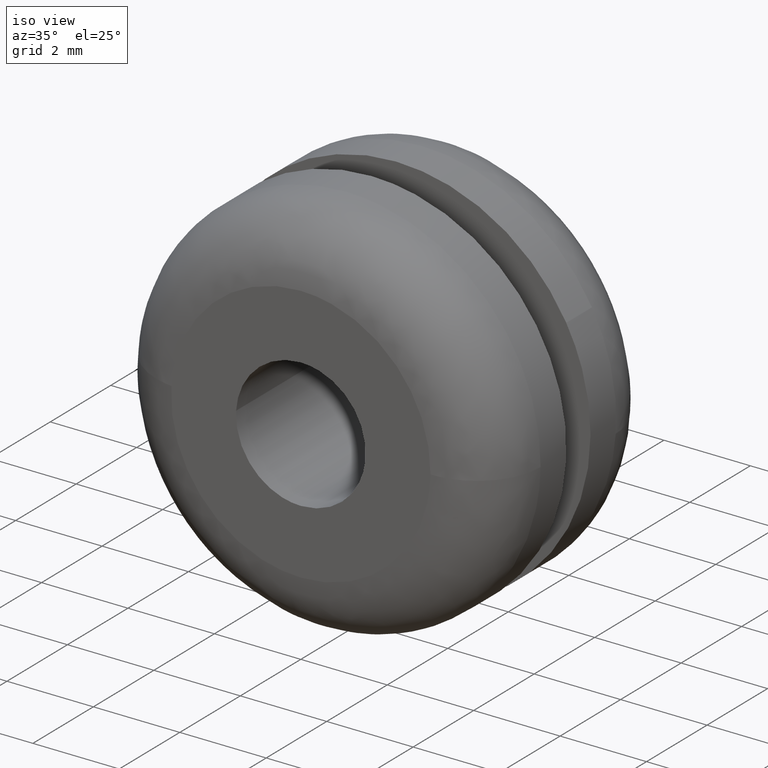
[diagram: clean part render]
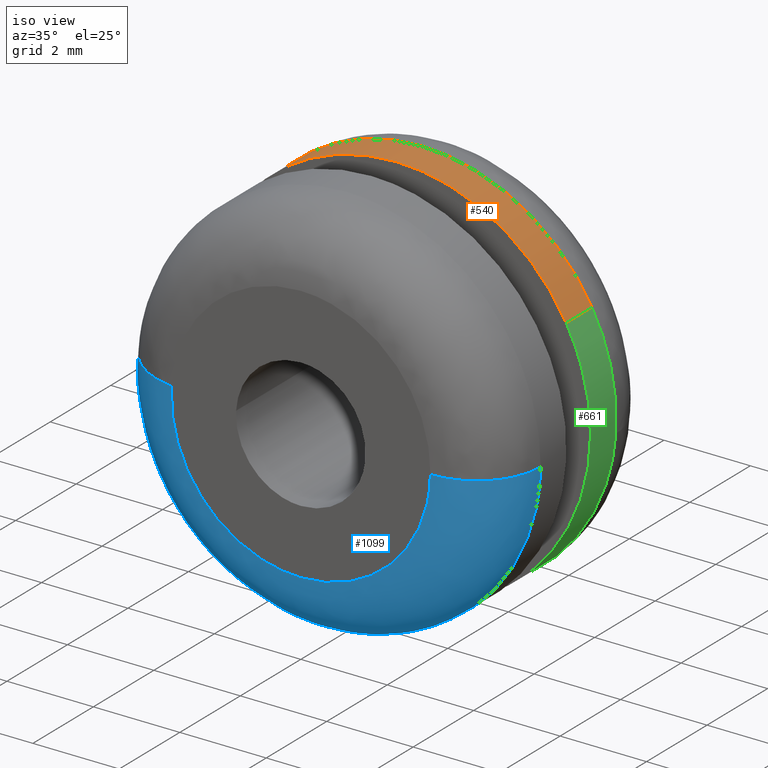
[diagram: same view with three faces highlighted in distinct colors, each labeled with its STEP entity id]
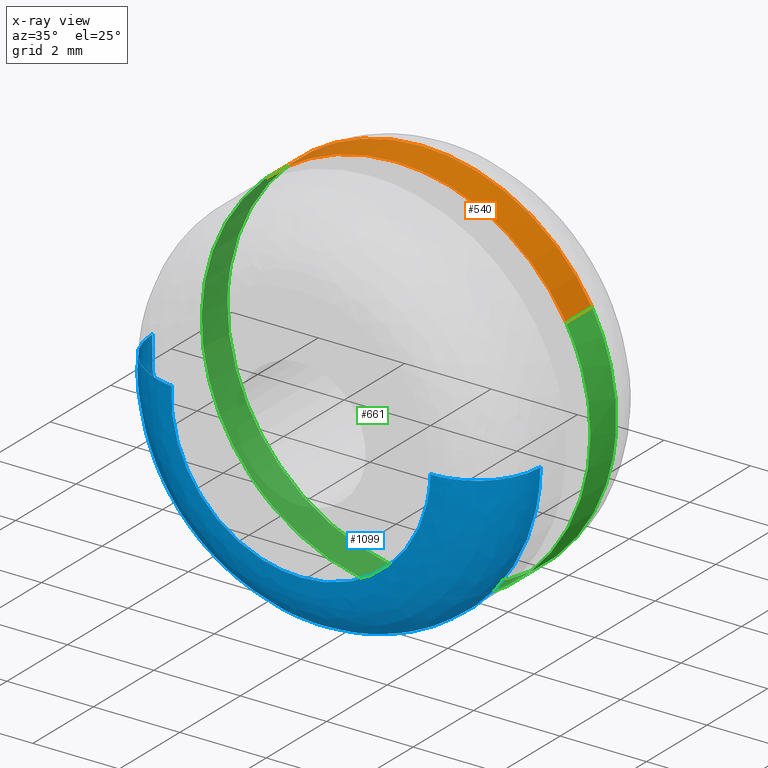
[diagram: x-ray of the same camera — body ghosted, the three highlighted faces saturated]
A machine part, iso view with three faces highlighted in distinct colors.
The next image is the same camera in x-ray (body ghosted, the three faces saturated) — at least one of them is partly hidden behind the body in this view.
Their STEP definitions:

[orange] entity #540 — the highlighted face is a freeform B-spline surface patch.
#446=CARTESIAN_POINT('',(3.937258923494086,4.021250000000000,2.178988795144706));
#447=CARTESIAN_POINT('',(3.678613609624216,4.021250000000001,2.646340243818148));
#448=CARTESIAN_POINT('',(3.317748015645557,4.021250000000000,3.040155934270470));
#449=CARTESIAN_POINT('',(0.277592081375087,4.021250000000000,6.357903949916027));
#450=CARTESIAN_POINT('',(-3.040155934270470,4.021250000000000,3.317748015645556));
#451=CARTESIAN_POINT('',(3.937258923494086,3.128218750000001,2.178988795144706));
#452=CARTESIAN_POINT('',(3.678613609624216,3.128218750000000,2.646340243818148));
#453=CARTESIAN_POINT('',(3.317748015645557,3.128218749999999,3.040155934270470));
#454=CARTESIAN_POINT('',(0.277592081375087,3.128218749999999,6.357903949916027));
#455=CARTESIAN_POINT('',(-3.040155934270470,3.128218749999999,3.317748015645556));
#463=(BOUNDED_SURFACE()B_SPLINE_SURFACE(2,1,((#446,#451),(#447,#452),(#448,#453),(#449,#454),(#450,#455)),.UNSPECIFIED.,.F.,.F.,.U.)B_SPLINE_SURFACE_WITH_KNOTS((3,2,3),(2,2),(0.0,1.192935059634515,8.648779182350223),(0.0,1.0),.UNSPECIFIED.)GEOMETRIC_REPRESENTATION_ITEM()RATIONAL_B_SPLINE_SURFACE(((0.921270302782944,0.921270302782944),(0.953137084989848,0.953137084989848),(1.0,1.0),(0.707106781186548,0.707106781186548),(1.0,1.0)))REPRESENTATION_ITEM('')SURFACE());
#464=CARTESIAN_POINT('',(3.937259326449927,3.999998615104019,2.178988067033666));
#465=VERTEX_POINT('',#464);
#466=CARTESIAN_POINT('',(0.0,4.0,4.500000000000000));
#467=VERTEX_POINT('',#466);
#468=CARTESIAN_POINT('',(3.937259326449926,3.999998615104019,2.178988067033667));
#469=CARTESIAN_POINT('',(2.652747771968026,3.999999428310455,4.500000000000056));
#470=CARTESIAN_POINT('',(0.0,4.0,4.500000000000000));
#478=(BOUNDED_CURVE()B_SPLINE_CURVE(2,(#468,#469,#470),.UNSPECIFIED.,.F.,.U.)B_SPLINE_CURVE_WITH_KNOTS((3,3),(0.332484232055869,0.500000000000000),.UNSPECIFIED.)CURVE()GEOMETRIC_REPRESENTATION_ITEM()RATIONAL_B_SPLINE_CURVE((0.870495182812016,0.803743070099344,1.0))REPRESENTATION_ITEM(''));
#479=EDGE_CURVE('',#465,#467,#478,.T.);
#480=ORIENTED_EDGE('',*,*,#479,.T.);
#481=CARTESIAN_POINT('',(-3.040155751178251,3.999999005672904,3.317748183417780));
#482=VERTEX_POINT('',#481);
#483=CARTESIAN_POINT('',(0.0,4.0,4.500000000000000));
#484=CARTESIAN_POINT('',(-1.749954007448562,3.999999586460660,4.499999999999990));
#485=CARTESIAN_POINT('',(-3.040155751178251,3.999999005672904,3.317748183417780));
#493=(BOUNDED_CURVE()B_SPLINE_CURVE(2,(#483,#484,#485),.UNSPECIFIED.,.F.,.U.)B_SPLINE_CURVE_WITH_KNOTS((3,3),(0.500000000000000,0.618415192422472),.UNSPECIFIED.)CURVE()GEOMETRIC_REPRESENTATION_ITEM()RATIONAL_B_SPLINE_CURVE((1.0,0.861267972539871,0.853959782894549))REPRESENTATION_ITEM(''));
#494=EDGE_CURVE('',#467,#482,#493,.T.);
#495=ORIENTED_EDGE('',*,*,#494,.T.);
#496=CARTESIAN_POINT('',(-3.040155756033133,3.150000000000000,3.317748178969969));
#497=VERTEX_POINT('',#496);
#498=CARTESIAN_POINT('',(-3.040155751178251,3.999999005672904,3.317748183417780));
#499=CARTESIAN_POINT('',(-3.040155756033133,3.150000000000000,3.317748178969969));
#500=QUASI_UNIFORM_CURVE('',1,(#498,#499),.UNSPECIFIED.,.F.,.U.);
#501=EDGE_CURVE('',#482,#497,#500,.T.);
#502=ORIENTED_EDGE('',*,*,#501,.T.);
#503=CARTESIAN_POINT('',(0.0,3.150000000000000,4.500000000000000));
#504=VERTEX_POINT('',#503);
#505=CARTESIAN_POINT('',(0.0,3.150000000000000,4.500000000000000));
#506=CARTESIAN_POINT('',(-1.749954015028582,3.150000000000001,4.500000000000000));
#507=CARTESIAN_POINT('',(-3.040155756033133,3.150000000000000,3.317748178969969));
#515=(BOUNDED_CURVE()B_SPLINE_CURVE(2,(#505,#506,#507),.UNSPECIFIED.,.F.,.U.)B_SPLINE_CURVE_WITH_KNOTS((3,3),(0.500000000000000,0.618415192864190),.UNSPECIFIED.)CURVE()GEOMETRIC_REPRESENTATION_ITEM()RATIONAL_B_SPLINE_CURVE((1.0,0.861267972022367,0.853959782840026))REPRESENTATION_ITEM(''));
#516=EDGE_CURVE('',#504,#497,#515,.T.);
#517=ORIENTED_EDGE('',*,*,#516,.F.);
#518=CARTESIAN_POINT('',(3.937259294698642,3.150000000000000,2.178988124407418));
#519=VERTEX_POINT('',#518);
#520=CARTESIAN_POINT('',(3.937259294698642,3.150000000000000,2.178988124407417));
#521=CARTESIAN_POINT('',(2.652747683607111,3.150000000000000,4.500000000000000));
#522=CARTESIAN_POINT('',(0.0,3.150000000000000,4.500000000000000));
#530=(BOUNDED_CURVE()B_SPLINE_CURVE(2,(#520,#521,#522),.UNSPECIFIED.,.F.,.U.)B_SPLINE_CURVE_WITH_KNOTS((3,3),(0.332484236540648,0.500000000000000),.UNSPECIFIED.)CURVE()GEOMETRIC_REPRESENTATION_ITEM()RATIONAL_B_SPLINE_CURVE((0.870495179237803,0.803743075353590,1.0))REPRESENTATION_ITEM(''));
#531=EDGE_CURVE('',#519,#504,#530,.T.);
#532=ORIENTED_EDGE('',*,*,#531,.F.);
#533=CARTESIAN_POINT('',(3.937259326449927,3.999998615104019,2.178988067033666));
#534=CARTESIAN_POINT('',(3.937259294698642,3.150000000000000,2.178988124407418));
#535=QUASI_UNIFORM_CURVE('',1,(#533,#534),.UNSPECIFIED.,.F.,.U.);
#536=EDGE_CURVE('',#465,#519,#535,.T.);
#537=ORIENTED_EDGE('',*,*,#536,.F.);
#538=EDGE_LOOP('',(#480,#495,#502,#517,#532,#537));
#539=FACE_OUTER_BOUND('',#538,.T.);
#540=ADVANCED_FACE('',(#539),#463,.T.);

[blue] entity #1099 — the highlighted face is a freeform B-spline surface patch.
#70=CARTESIAN_POINT('',(2.442279190676583,1.500000644835007,-3.779586267673306));
#71=VERTEX_POINT('',#70);
#72=CARTESIAN_POINT('',(4.499644736739940,1.500001817245184,-0.056544169457881));
#73=VERTEX_POINT('',#72);
#74=CARTESIAN_POINT('',(2.442279190676583,1.500000644835007,-3.779586267673306));
#75=CARTESIAN_POINT('',(4.469319372852793,1.500001323777086,-2.469761399752330));
#76=CARTESIAN_POINT('',(4.499644736739940,1.500001817245185,-0.056544169457881));
#84=(BOUNDED_CURVE()B_SPLINE_CURVE(2,(#74,#75,#76),.UNSPECIFIED.,.F.,.U.)B_SPLINE_CURVE_WITH_KNOTS((3,3),(0.092934687537598,0.247784413567222),.UNSPECIFIED.)CURVE()GEOMETRIC_REPRESENTATION_ITEM()RATIONAL_B_SPLINE_CURVE((0.863190132942542,0.816652401106871,0.994854566418424))REPRESENTATION_ITEM(''));
#85=EDGE_CURVE('',#71,#73,#84,.T.);
#128=CARTESIAN_POINT('',(-3.472310983391997,1.500000969015339,-2.862351556781801));
#129=VERTEX_POINT('',#128);
#135=CARTESIAN_POINT('',(-4.489045532774552,1.500001788692589,0.313799625011947));
#136=VERTEX_POINT('',#135);
#137=CARTESIAN_POINT('',(-4.489045532774553,1.500001788692590,0.313799625011947));
#138=CARTESIAN_POINT('',(-4.499999999997907,1.500001759578008,0.157091017884401));
#139=CARTESIAN_POINT('',(-4.499999999997943,1.500001728357170,-1.432532E-013));
#140=CARTESIAN_POINT('',(-4.499999999998325,1.500001407254165,-1.615664453957860));
#141=CARTESIAN_POINT('',(-3.472310983391997,1.500000969015339,-2.862351556781802));
#149=(BOUNDED_CURVE()B_SPLINE_CURVE(2,(#137,#138,#139,#140,#141),.UNSPECIFIED.,.F.,.U.)B_SPLINE_CURVE_WITH_KNOTS((3,2,3),(0.737833686806281,0.750000000000000,0.860504588013028),.UNSPECIFIED.)CURVE()GEOMETRIC_REPRESENTATION_ITEM()RATIONAL_B_SPLINE_CURVE((0.972879876960564,0.985746277470396,1.0,0.870535822092839,0.855522729322288))REPRESENTATION_ITEM(''));
#150=EDGE_CURVE('',#136,#129,#149,.T.);
#199=CARTESIAN_POINT('',(0.0,1.500000000000000,-4.500000000000000));
#200=VERTEX_POINT('',#199);
#201=CARTESIAN_POINT('',(0.0,1.500000000000000,-4.500000000000000));
#202=CARTESIAN_POINT('',(1.327391529751170,1.500000271410983,-4.499999999999995));
#203=CARTESIAN_POINT('',(2.442279190676583,1.500000644835007,-3.779586267673307));
#211=(BOUNDED_CURVE()B_SPLINE_CURVE(2,(#201,#202,#203),.UNSPECIFIED.,.F.,.U.)B_SPLINE_CURVE_WITH_KNOTS((3,3),(0.0,0.092934687537598),.UNSPECIFIED.)CURVE()GEOMETRIC_REPRESENTATION_ITEM()RATIONAL_B_SPLINE_CURVE((1.0,0.891120240910762,0.863190132942542))REPRESENTATION_ITEM(''));
#212=EDGE_CURVE('',#200,#71,#211,.T.);
#214=CARTESIAN_POINT('',(-3.472310983391997,1.500000969015339,-2.862351556781802));
#215=CARTESIAN_POINT('',(-2.122338472770120,1.500000393345193,-4.500000000000034));
#216=CARTESIAN_POINT('',(0.0,1.500000000000000,-4.500000000000000));
#224=(BOUNDED_CURVE()B_SPLINE_CURVE(2,(#214,#215,#216),.UNSPECIFIED.,.F.,.U.)B_SPLINE_CURVE_WITH_KNOTS((3,3),(0.860504588013029,1.0),.UNSPECIFIED.)CURVE()GEOMETRIC_REPRESENTATION_ITEM()RATIONAL_B_SPLINE_CURVE((0.855522729322287,0.836570959093710,1.0))REPRESENTATION_ITEM(''));
#225=EDGE_CURVE('',#129,#200,#224,.T.);
#1004=CARTESIAN_POINT('',(-4.485423301064805,1.604307614881043,0.313546176984434));
#1005=CARTESIAN_POINT('',(-4.494396849282249,1.604307614881043,0.185175413051453));
#1006=CARTESIAN_POINT('',(-4.496013897839067,1.604307614881042,0.056501551081305));
#1007=CARTESIAN_POINT('',(-4.552515448920373,1.604307614881042,-4.439512346757762));
#1008=CARTESIAN_POINT('',(-0.056501551081306,1.604307614881042,-4.496013897839067));
#1009=CARTESIAN_POINT('',(4.439512346757762,1.604307614881042,-4.552515448920373));
#1010=CARTESIAN_POINT('',(4.496013897839067,1.604307614881042,-0.056501551081306));
#1011=CARTESIAN_POINT('',(-4.605070410531482,-0.116306078043954,0.321909912409719));
#1012=CARTESIAN_POINT('',(-4.614283325032510,-0.116306078043954,0.190114902912007));
#1013=CARTESIAN_POINT('',(-4.615943507798231,-0.116306078043954,0.058008710342206));
#1014=CARTESIAN_POINT('',(-4.673952218140440,-0.116306078043954,-4.557934797456025));
#1015=CARTESIAN_POINT('',(-0.058008710342207,-0.116306078043954,-4.615943507798231));
#1016=CARTESIAN_POINT('',(4.557934797456025,-0.116306078043954,-4.673952218140440));
#1017=CARTESIAN_POINT('',(4.615943507798231,-0.116306078043954,-0.058008710342208));
#1018=CARTESIAN_POINT('',(-2.888645104223201,0.003630964253733,0.201926009721083));
#1019=CARTESIAN_POINT('',(-2.894424134291484,0.003630964253733,0.119254307660685));
#1020=CARTESIAN_POINT('',(-2.895465525278112,0.003630964253733,0.036387408268308));
#1021=CARTESIAN_POINT('',(-2.931852933546420,0.003630964253733,-2.859078117009804));
#1022=CARTESIAN_POINT('',(-0.036387408268309,0.003630964253733,-2.895465525278114));
#1023=CARTESIAN_POINT('',(2.859078117009803,0.003630964253733,-2.931852933546422));
#1024=CARTESIAN_POINT('',(2.895465525278112,0.003630964253733,-0.036387408268309));
#1032=(BOUNDED_SURFACE()B_SPLINE_SURFACE(2,2,((#1004,#1011,#1018),(#1005,#1012,#1019),(#1006,#1013,#1020),(#1007,#1014,#1021),(#1008,#1015,#1022),(#1009,#1016,#1023),(#1010,#1017,#1024)),.UNSPECIFIED.,.F.,.F.,.U.)B_SPLINE_SURFACE_WITH_KNOTS((3,2,2,3),(3,3),(0.0,0.297992833391932,7.747820772899786,15.197648712407640),(0.0,2.733563446293642),.UNSPECIFIED.)GEOMETRIC_REPRESENTATION_ITEM()RATIONAL_B_SPLINE_SURFACE(((0.889999828655264,0.584039477663278,0.889999348488649),(0.899813405508992,0.590479384857776,0.899812920047823),(0.910480335987150,0.597479283401742,0.910479844771032),(0.643806819713520,0.422481652911851,0.643806472371272),(0.910480335987150,0.597479283401742,0.910479844771032),(0.643806819713520,0.422481652911851,0.643806472371272),(0.910480335987150,0.597479283401742,0.910479844771032)))REPRESENTATION_ITEM('')SURFACE());
#1033=ORIENTED_EDGE('',*,*,#150,.T.);
#1034=ORIENTED_EDGE('',*,*,#225,.T.);
#1035=ORIENTED_EDGE('',*,*,#212,.T.);
#1036=ORIENTED_EDGE('',*,*,#85,.T.);
#1037=CARTESIAN_POINT('',(2.999763132632581,-2.416769E-017,-0.037698119653299));
#1038=VERTEX_POINT('',#1037);
#1039=CARTESIAN_POINT('',(4.499644736739940,1.500001817245184,-0.056544169457881));
#1040=CARTESIAN_POINT('',(4.499646534921304,4.234577E-011,-0.056545697303434));
#1041=CARTESIAN_POINT('',(2.999763132632581,-2.416769E-017,-0.037698119653299));
#1049=(BOUNDED_CURVE()B_SPLINE_CURVE(2,(#1039,#1040,#1041),.UNSPECIFIED.,.F.,.U.)B_SPLINE_CURVE_WITH_KNOTS((3,3),(-1.725135885666325,-0.274865356747136),.UNSPECIFIED.)CURVE()GEOMETRIC_REPRESENTATION_ITEM()RATIONAL_B_SPLINE_CURVE((0.883342592930895,0.624617002494017,0.883342149642730))REPRESENTATION_ITEM(''));
#1050=EDGE_CURVE('',#73,#1038,#1049,.T.);
#1051=ORIENTED_EDGE('',*,*,#1050,.T.);
#1052=CARTESIAN_POINT('',(0.0,-5.510729E-016,-3.0));
#1053=VERTEX_POINT('',#1052);
#1054=CARTESIAN_POINT('',(0.0,-5.510729E-016,-3.0));
#1055=CARTESIAN_POINT('',(2.962535789716068,-5.510729E-016,-3.000000000000000));
#1056=CARTESIAN_POINT('',(2.999763132632581,-2.416769E-017,-0.037698119653299));
#1064=(BOUNDED_CURVE()B_SPLINE_CURVE(2,(#1054,#1055,#1056),.UNSPECIFIED.,.F.,.U.)B_SPLINE_CURVE_WITH_KNOTS((3,3),(0.0,0.247784295921379),.UNSPECIFIED.)CURVE()GEOMETRIC_REPRESENTATION_ITEM()RATIONAL_B_SPLINE_CURVE((1.0,0.709702639984649,0.994854295643210))REPRESENTATION_ITEM(''));
#1065=EDGE_CURVE('',#1053,#1038,#1064,.T.);
#1066=ORIENTED_EDGE('',*,*,#1065,.F.);
#1067=CARTESIAN_POINT('',(-2.992697021620958,-1.838323E-017,0.209199754758038));
#1068=VERTEX_POINT('',#1067);
#1069=CARTESIAN_POINT('',(-2.992697021620958,-1.838323E-017,0.209199754758038));
#1070=CARTESIAN_POINT('',(-3.0,-5.510729E-016,0.104727347648850));
#1071=CARTESIAN_POINT('',(-3.0,-5.510729E-016,-3.061516E-016));
#1072=CARTESIAN_POINT('',(-3.0,-5.510729E-016,-3.0));
#1073=CARTESIAN_POINT('',(0.0,-5.510729E-016,-3.0));
#1081=(BOUNDED_CURVE()B_SPLINE_CURVE(2,(#1069,#1070,#1071,#1072,#1073),.UNSPECIFIED.,.F.,.U.)B_SPLINE_CURVE_WITH_KNOTS((3,2,3),(0.737833686532304,0.750000000000000,1.0),.UNSPECIFIED.)CURVE()GEOMETRIC_REPRESENTATION_ITEM()RATIONAL_B_SPLINE_CURVE((0.972879876381080,0.985746277149413,1.0,0.707106781186548,1.0))REPRESENTATION_ITEM(''));
#1082=EDGE_CURVE('',#1068,#1053,#1081,.T.);
#1083=ORIENTED_EDGE('',*,*,#1082,.F.);
#1084=CARTESIAN_POINT('',(-4.489045532774553,1.500001788692589,0.313799625011947));
#1085=CARTESIAN_POINT('',(-4.489047316621336,2.032624E-010,0.313799756820915));
#1086=CARTESIAN_POINT('',(-2.992697021620958,-1.838323E-017,0.209199754758038));
#1094=(BOUNDED_CURVE()B_SPLINE_CURVE(2,(#1084,#1085,#1086),.UNSPECIFIED.,.F.,.U.)B_SPLINE_CURVE_WITH_KNOTS((3,3),(-1.725135866145949,-0.274865356857148),.UNSPECIFIED.)CURVE()GEOMETRIC_REPRESENTATION_ITEM()RATIONAL_B_SPLINE_CURVE((0.863472501871228,0.610566746636410,0.863472075324237))REPRESENTATION_ITEM(''));
#1095=EDGE_CURVE('',#136,#1068,#1094,.T.);
#1096=ORIENTED_EDGE('',*,*,#1095,.F.);
#1097=EDGE_LOOP('',(#1033,#1034,#1035,#1036,#1051,#1066,#1083,#1096));
#1098=FACE_OUTER_BOUND('',#1097,.T.);
#1099=ADVANCED_FACE('',(#1098),#1032,.T.);

[green] entity #661 — the highlighted face is a freeform B-spline surface patch.
#464=CARTESIAN_POINT('',(3.937259326449927,3.999998615104019,2.178988067033666));
#465=VERTEX_POINT('',#464);
#481=CARTESIAN_POINT('',(-3.040155751178251,3.999999005672904,3.317748183417780));
#482=VERTEX_POINT('',#481);
#496=CARTESIAN_POINT('',(-3.040155756033133,3.150000000000000,3.317748178969969));
#497=VERTEX_POINT('',#496);
#498=CARTESIAN_POINT('',(-3.040155751178251,3.999999005672904,3.317748183417780));
#499=CARTESIAN_POINT('',(-3.040155756033133,3.150000000000000,3.317748178969969));
#500=QUASI_UNIFORM_CURVE('',1,(#498,#499),.UNSPECIFIED.,.F.,.U.);
#501=EDGE_CURVE('',#482,#497,#500,.T.);
#518=CARTESIAN_POINT('',(3.937259294698642,3.150000000000000,2.178988124407418));
#519=VERTEX_POINT('',#518);
#533=CARTESIAN_POINT('',(3.937259326449927,3.999998615104019,2.178988067033666));
#534=CARTESIAN_POINT('',(3.937259294698642,3.150000000000000,2.178988124407418));
#535=QUASI_UNIFORM_CURVE('',1,(#533,#534),.UNSPECIFIED.,.F.,.U.);
#536=EDGE_CURVE('',#465,#519,#535,.T.);
#541=CARTESIAN_POINT('',(-3.040155934270470,4.021250000000000,3.317748015645556));
#542=CARTESIAN_POINT('',(-6.357903949916027,4.021250000000000,0.277592081375086));
#543=CARTESIAN_POINT('',(-3.317748015645557,4.021250000000000,-3.040155934270471));
#544=CARTESIAN_POINT('',(-0.277592081375087,4.021250000000000,-6.357903949916027));
#545=CARTESIAN_POINT('',(3.040155934270470,4.021250000000000,-3.317748015645557));
#546=CARTESIAN_POINT('',(5.653844244093578,4.021250000000000,-0.922743938189733));
#547=CARTESIAN_POINT('',(3.937258923494086,4.021250000000000,2.178988795144706));
#548=CARTESIAN_POINT('',(-3.040155934270470,3.128218749999999,3.317748015645556));
#549=CARTESIAN_POINT('',(-6.357903949916027,3.128218749999999,0.277592081375086));
#550=CARTESIAN_POINT('',(-3.317748015645557,3.128218749999999,-3.040155934270471));
#551=CARTESIAN_POINT('',(-0.277592081375087,3.128218749999999,-6.357903949916027));
#552=CARTESIAN_POINT('',(3.040155934270470,3.128218749999999,-3.317748015645557));
#553=CARTESIAN_POINT('',(5.653844244093578,3.128218749999999,-0.922743938189733));
#554=CARTESIAN_POINT('',(3.937258923494086,3.128218750000001,2.178988795144706));
#562=(BOUNDED_SURFACE()B_SPLINE_SURFACE(2,1,((#541,#548),(#542,#549),(#543,#550),(#544,#551),(#545,#552),(#546,#553),(#547,#554)),.UNSPECIFIED.,.F.,.F.,.U.)B_SPLINE_SURFACE_WITH_KNOTS((3,2,2,3),(2,2),(0.0,7.455844122715709,14.911688245431421,21.174597308512610),(0.0,1.0),.UNSPECIFIED.)GEOMETRIC_REPRESENTATION_ITEM()RATIONAL_B_SPLINE_SURFACE(((1.0,1.0),(0.707106781186548,0.707106781186548),(1.0,1.0),(0.707106781186548,0.707106781186548),(1.0,1.0),(0.753969696196700,0.753969696196700),(0.921270302782944,0.921270302782944)))REPRESENTATION_ITEM('')SURFACE());
#563=CARTESIAN_POINT('',(4.489045532640584,3.999997920107929,-0.313799626917650));
#564=VERTEX_POINT('',#563);
#565=CARTESIAN_POINT('',(4.489045532640584,3.999997920107929,-0.313799626917650));
#566=CARTESIAN_POINT('',(4.499999999997170,3.999997953962370,-0.157091018840716));
#567=CARTESIAN_POINT('',(4.499999999997219,3.999997990265967,1.939195E-013));
#568=CARTESIAN_POINT('',(4.499999999997591,3.999998258840043,1.162159675015829));
#569=CARTESIAN_POINT('',(3.937259326449927,3.999998615104019,2.178988067033666));
#577=(BOUNDED_CURVE()B_SPLINE_CURVE(2,(#565,#566,#567,#568,#569),.UNSPECIFIED.,.F.,.U.)B_SPLINE_CURVE_WITH_KNOTS((3,2,3),(0.237833686733268,0.250000000000000,0.332484232055868),.UNSPECIFIED.)CURVE()GEOMETRIC_REPRESENTATION_ITEM()RATIONAL_B_SPLINE_CURVE((0.972879876806137,0.985746277384857,1.0,0.903363711087204,0.870495182812016))REPRESENTATION_ITEM(''));
#578=EDGE_CURVE('',#564,#465,#577,.T.);
#579=ORIENTED_EDGE('',*,*,#578,.T.);
#580=ORIENTED_EDGE('',*,*,#536,.T.);
#581=CARTESIAN_POINT('',(0.0,3.150000000000000,-4.500000000000000));
#582=VERTEX_POINT('',#581);
#583=CARTESIAN_POINT('',(0.0,3.150000000000000,-4.500000000000000));
#584=CARTESIAN_POINT('',(4.500000000000000,3.150000000000001,-4.500000000000000));
#585=CARTESIAN_POINT('',(4.500000000000000,3.150000000000000,-3.061516E-016));
#586=CARTESIAN_POINT('',(4.500000000000000,3.150000000000001,1.162159744963343));
#587=CARTESIAN_POINT('',(3.937259294698642,3.150000000000000,2.178988124407417));
#595=(BOUNDED_CURVE()B_SPLINE_CURVE(2,(#583,#584,#585,#586,#587),.UNSPECIFIED.,.F.,.U.)B_SPLINE_CURVE_WITH_KNOTS((3,2,3),(0.0,0.250000000000000,0.332484236540648),.UNSPECIFIED.)CURVE()GEOMETRIC_REPRESENTATION_ITEM()RATIONAL_B_SPLINE_CURVE((1.0,0.707106781186547,1.0,0.903363705832958,0.870495179237803))REPRESENTATION_ITEM(''));
#596=EDGE_CURVE('',#582,#519,#595,.T.);
#597=ORIENTED_EDGE('',*,*,#596,.F.);
#598=CARTESIAN_POINT('',(-3.040155756033133,3.149999999999999,3.317748178969970));
#599=CARTESIAN_POINT('',(-4.500000000000000,3.150000000000001,1.980047677569161));
#600=CARTESIAN_POINT('',(-4.500000000000000,3.150000000000000,-3.061516E-016));
#601=CARTESIAN_POINT('',(-4.500000000000000,3.150000000000001,-4.500000000000000));
#602=CARTESIAN_POINT('',(0.0,3.150000000000000,-4.500000000000000));
#610=(BOUNDED_CURVE()B_SPLINE_CURVE(2,(#598,#599,#600,#601,#602),.UNSPECIFIED.,.F.,.U.)B_SPLINE_CURVE_WITH_KNOTS((3,2,3),(0.618415192864190,0.750000000000000,1.0),.UNSPECIFIED.)CURVE()GEOMETRIC_REPRESENTATION_ITEM()RATIONAL_B_SPLINE_CURVE((0.853959782840026,0.845838809164180,1.0,0.707106781186547,1.0))REPRESENTATION_ITEM(''));
#611=EDGE_CURVE('',#497,#582,#610,.T.);
#612=ORIENTED_EDGE('',*,*,#611,.F.);
#613=ORIENTED_EDGE('',*,*,#501,.F.);
#614=CARTESIAN_POINT('',(-4.499644736732964,3.999997899728951,0.056544169954152));
#615=VERTEX_POINT('',#614);
#616=CARTESIAN_POINT('',(-3.040155751178251,3.999999005672904,3.317748183417780));
#617=CARTESIAN_POINT('',(-4.475187579246361,3.999998359689788,2.002784075025912));
#618=CARTESIAN_POINT('',(-4.499644736732964,3.999997899728951,0.056544169954152));
#626=(BOUNDED_CURVE()B_SPLINE_CURVE(2,(#616,#617,#618),.UNSPECIFIED.,.F.,.U.)B_SPLINE_CURVE_WITH_KNOTS((3,3),(0.618415192422473,0.747784413547825),.UNSPECIFIED.)CURVE()GEOMETRIC_REPRESENTATION_ITEM()RATIONAL_B_SPLINE_CURVE((0.853959782894549,0.845975547232638,0.994854566373780))REPRESENTATION_ITEM(''));
#627=EDGE_CURVE('',#482,#615,#626,.T.);
#628=ORIENTED_EDGE('',*,*,#627,.T.);
#629=CARTESIAN_POINT('',(0.0,4.0,-4.500000000000000));
#630=VERTEX_POINT('',#629);
#631=CARTESIAN_POINT('',(-4.499644736732964,3.999997899728951,0.056544169954152));
#632=CARTESIAN_POINT('',(-4.499999999996064,3.999997906244491,0.028273201024791));
#633=CARTESIAN_POINT('',(-4.499999999996077,3.999997912842423,-4.880959E-014));
#634=CARTESIAN_POINT('',(-4.499999999998050,3.999998962977948,-4.500000000000025));
#635=CARTESIAN_POINT('',(0.0,4.0,-4.500000000000000));
#643=(BOUNDED_CURVE()B_SPLINE_CURVE(2,(#631,#632,#633,#634,#635),.UNSPECIFIED.,.F.,.U.)B_SPLINE_CURVE_WITH_KNOTS((3,2,3),(0.747784413547825,0.750000000000000,1.0),.UNSPECIFIED.)CURVE()GEOMETRIC_REPRESENTATION_ITEM()RATIONAL_B_SPLINE_CURVE((0.994854566373780,0.997404279009852,1.0,0.707106781186547,1.0))REPRESENTATION_ITEM(''));
#644=EDGE_CURVE('',#615,#630,#643,.T.);
#645=ORIENTED_EDGE('',*,*,#644,.T.);
#646=CARTESIAN_POINT('',(0.0,4.0,-4.500000000000000));
#647=CARTESIAN_POINT('',(4.196415817544660,3.999998960053965,-4.499999999999901));
#648=CARTESIAN_POINT('',(4.489045532640584,3.999997920107929,-0.313799626917650));
#656=(BOUNDED_CURVE()B_SPLINE_CURVE(2,(#646,#647,#648),.UNSPECIFIED.,.F.,.U.)B_SPLINE_CURVE_WITH_KNOTS((3,3),(0.0,0.237833686733268),.UNSPECIFIED.)CURVE()GEOMETRIC_REPRESENTATION_ITEM()RATIONAL_B_SPLINE_CURVE((1.0,0.721360503801691,0.972879876806137))REPRESENTATION_ITEM(''));
#657=EDGE_CURVE('',#630,#564,#656,.T.);
#658=ORIENTED_EDGE('',*,*,#657,.T.);
#659=EDGE_LOOP('',(#579,#580,#597,#612,#613,#628,#645,#658));
#660=FACE_OUTER_BOUND('',#659,.T.);
#661=ADVANCED_FACE('',(#660),#562,.T.);